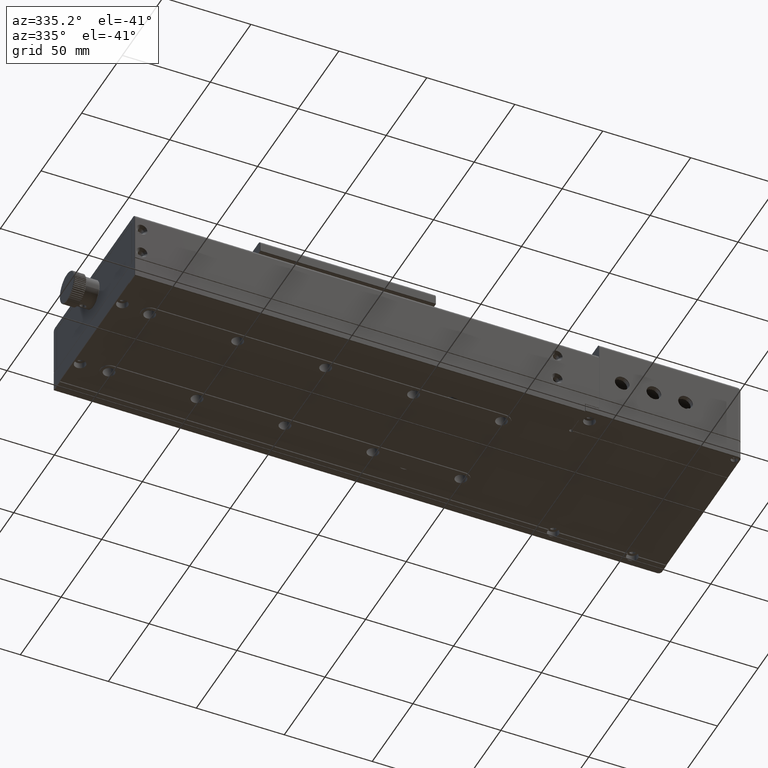
[diagram: clean part render]
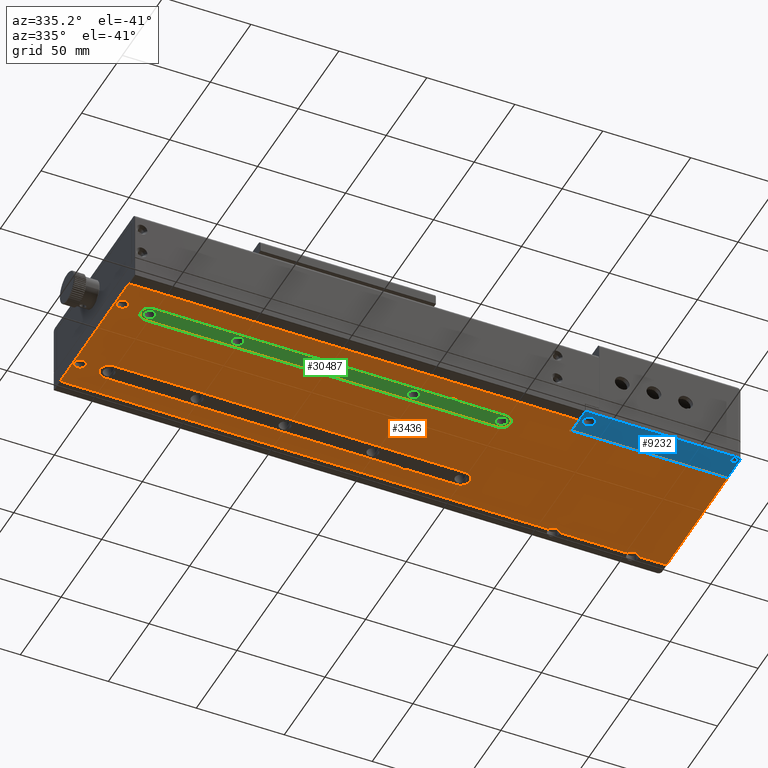
[diagram: same view with three faces highlighted in distinct colors, each labeled with its STEP entity id]
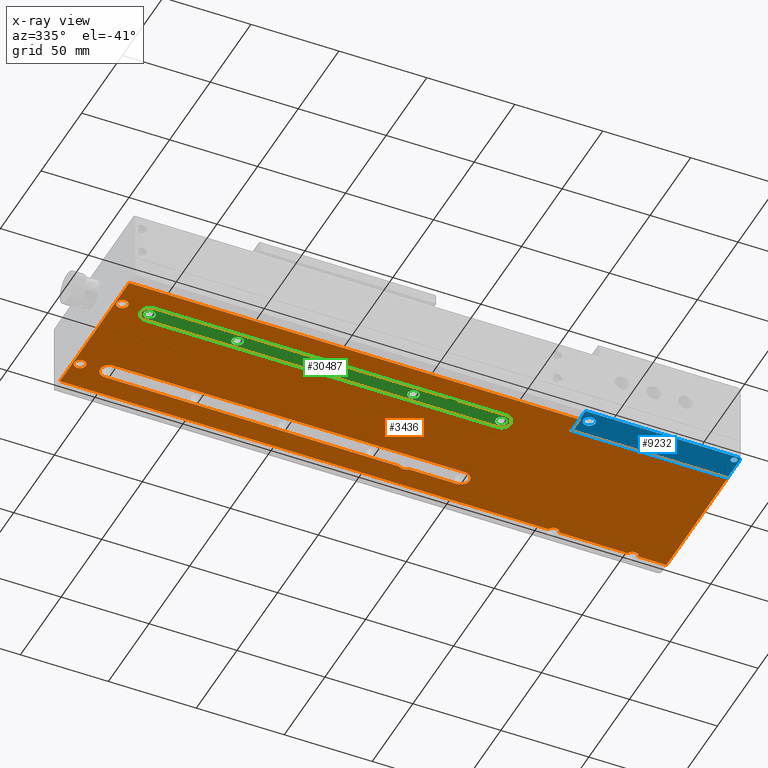
[diagram: x-ray of the same camera — body ghosted, the three highlighted faces saturated]
A machine part, auxiliary view with three faces highlighted in distinct colors.
The next image is the same camera in x-ray (body ghosted, the three faces saturated) — at least one of them is partly hidden behind the body in this view.
Their STEP definitions:

[orange] entity #3436 — the highlighted planar face has unit normal (0, 0, -1).
#35 = FACE_BOUND ( 'NONE', #50889, .T. ) ;
#668 = CARTESIAN_POINT ( 'NONE',  ( 87.03920879970988267, -23.80575141257549632, -4.500000000000000000 ) ) ;
#1462 = EDGE_LOOP ( 'NONE', ( #67904, #23813, #48813, #31419, #66804, #66825, #72398 ) ) ;
#1613 = DIRECTION ( 'NONE',  ( 0.000000000000000000, 0.000000000000000000, 1.000000000000000000 ) ) ;
#2464 = DIRECTION ( 'NONE',  ( 0.000000000000000000, 0.000000000000000000, -1.000000000000000000 ) ) ;
#2886 = DIRECTION ( 'NONE',  ( 0.000000000000000000, 0.000000000000000000, -1.000000000000000000 ) ) ;
#2902 = DIRECTION ( 'NONE',  ( 0.000000000000000000, 0.000000000000000000, 1.000000000000000000 ) ) ;
#3334 = CARTESIAN_POINT ( 'NONE',  ( 51.03920879970989688, 39.99424858742450084, -4.500000000000000000 ) ) ;
#3436 = ADVANCED_FACE ( 'NONE', ( #44260, #38360, #35, #66034, #11440 ), #44645, .T. ) ;
#3461 = EDGE_CURVE ( 'NONE', #41956, #53781, #20891, .T. ) ;
#3626 = DIRECTION ( 'NONE',  ( 0.000000000000000000, 0.000000000000000000, -1.000000000000000000 ) ) ;
#3684 = CARTESIAN_POINT ( 'NONE',  ( -164.9607912002900036, -16.00575141257549916, -4.500000000000000000 ) ) ;
#3701 = VERTEX_POINT ( 'NONE', #36834 ) ;
#3896 = CARTESIAN_POINT ( 'NONE',  ( 157.0392087997099679, 53.49424858742450084, -4.500000000000000000 ) ) ;
#3945 = DIRECTION ( 'NONE',  ( -1.000000000000000000, 0.000000000000000000, 0.000000000000000000 ) ) ;
#4023 = VERTEX_POINT ( 'NONE', #34206 ) ;
#4256 = DIRECTION ( 'NONE',  ( 0.000000000000000000, 0.000000000000000000, -1.000000000000000000 ) ) ;
#4345 = DIRECTION ( 'NONE',  ( -1.000000000000000000, 0.000000000000000000, 0.000000000000000000 ) ) ;
#4831 = CARTESIAN_POINT ( 'NONE',  ( 18.03920879970995372, -20.00575141257549916, -4.500000000000000000 ) ) ;
#4924 = CIRCLE ( 'NONE', #46166, 3.250000000000002665 ) ;
#4974 = ORIENTED_EDGE ( 'NONE', *, *, #16820, .T. ) ;
#5299 = DIRECTION ( 'NONE',  ( 1.000000000000000000, -1.214306433183763733E-16, 0.000000000000000000 ) ) ;
#5459 = VERTEX_POINT ( 'NONE', #19792 ) ;
#5539 = DIRECTION ( 'NONE',  ( -1.000000000000000000, 0.000000000000000000, 0.000000000000000000 ) ) ;
#6135 = AXIS2_PLACEMENT_3D ( 'NONE', #47363, #64320, #8998 ) ;
#6262 = DIRECTION ( 'NONE',  ( -1.000000000000000000, 0.000000000000000000, 0.000000000000000000 ) ) ;
#6398 = CARTESIAN_POINT ( 'NONE',  ( 87.03920879970988267, 59.99424858742450084, -4.500000000000000000 ) ) ;
#6813 = EDGE_CURVE ( 'NONE', #69583, #3701, #45217, .T. ) ;
#7434 = DIRECTION ( 'NONE',  ( -1.000000000000000000, 0.000000000000000000, 0.000000000000000000 ) ) ;
#7517 = ORIENTED_EDGE ( 'NONE', *, *, #13441, .F. ) ;
#7619 = CARTESIAN_POINT ( 'NONE',  ( 51.03920879970989688, 34.99424858742449373, -4.500000000000000000 ) ) ;
#8079 = LINE ( 'NONE', #18436, #72133 ) ;
#8351 = AXIS2_PLACEMENT_3D ( 'NONE', #59644, #9155, #54114 ) ;
#8359 = CARTESIAN_POINT ( 'NONE',  ( 87.03920879970988267, -32.50575141257549916, -4.500000000000000000 ) ) ;
#8755 = CARTESIAN_POINT ( 'NONE',  ( 260.5351628252079763, 52.49424858742450084, -4.500000000000000000 ) ) ;
#8766 = DIRECTION ( 'NONE',  ( -1.000000000000000000, 0.000000000000000000, 0.000000000000000000 ) ) ;
#8810 = VERTEX_POINT ( 'NONE', #48857 ) ;
#8836 = ORIENTED_EDGE ( 'NONE', *, *, #57330, .F. ) ;
#8998 = DIRECTION ( 'NONE',  ( -1.000000000000000000, 6.938893903907227392E-16, 0.000000000000000000 ) ) ;
#9114 = VERTEX_POINT ( 'NONE', #47690 ) ;
#9155 = DIRECTION ( 'NONE',  ( 0.000000000000000000, 0.000000000000000000, -1.000000000000000000 ) ) ;
#9270 = VERTEX_POINT ( 'NONE', #21485 ) ;
#9473 = DIRECTION ( 'NONE',  ( 1.000000000000000000, 0.000000000000000000, 0.000000000000000000 ) ) ;
#9768 = EDGE_CURVE ( 'NONE', #18915, #5459, #4924, .T. ) ;
#9776 = EDGE_CURVE ( 'NONE', #53781, #50901, #56026, .T. ) ;
#9971 = EDGE_CURVE ( 'NONE', #64315, #69583, #8079, .T. ) ;
#10703 = DIRECTION ( 'NONE',  ( 0.000000000000000000, -1.000000000000000000, 0.000000000000000000 ) ) ;
#11080 = CARTESIAN_POINT ( 'NONE',  ( -168.9607912002899752, 59.99424858742450084, -4.500000000000000000 ) ) ;
#11440 = FACE_OUTER_BOUND ( 'NONE', #56497, .T. ) ;
#11518 = DIRECTION ( 'NONE',  ( 1.000000000000000000, 0.000000000000000000, 0.000000000000000000 ) ) ;
#11633 = VERTEX_POINT ( 'NONE', #65643 ) ;
#12034 = CIRCLE ( 'NONE', #13208, 3.250000000000002665 ) ;
#12654 = VECTOR ( 'NONE', #53909, 1000.000000000000000 ) ;
#12670 = DIRECTION ( 'NONE',  ( -1.000000000000000000, 1.214306433183763733E-16, 0.000000000000000000 ) ) ;
#12796 = CIRCLE ( 'NONE', #70460, 3.250000000000002665 ) ;
#13031 = LINE ( 'NONE', #28882, #33735 ) ;
#13208 = AXIS2_PLACEMENT_3D ( 'NONE', #57168, #61347, #66536 ) ;
#13379 = ORIENTED_EDGE ( 'NONE', *, *, #52855, .F. ) ;
#13441 = EDGE_CURVE ( 'NONE', #32456, #39956, #53584, .T. ) ;
#13861 = CARTESIAN_POINT ( 'NONE',  ( 160.1315380189229813, 52.49424858742450084, -4.500000000000000000 ) ) ;
#14099 = CARTESIAN_POINT ( 'NONE',  ( 176.0392087997099964, 59.99424858742450084, -4.500000000000000000 ) ) ;
#15058 = CARTESIAN_POINT ( 'NONE',  ( 87.03920879970988267, -22.80575141257549987, -4.500000000000000000 ) ) ;
#15404 = CARTESIAN_POINT ( 'NONE',  ( -148.9607912002899752, -10.00575141257546008, -4.500000000000000000 ) ) ;
#16253 = DIRECTION ( 'NONE',  ( 0.000000000000000000, 0.000000000000000000, -1.000000000000000000 ) ) ;
#16276 = AXIS2_PLACEMENT_3D ( 'NONE', #3684, #37244, #61168 ) ;
#16820 = EDGE_CURVE ( 'NONE', #44767, #50901, #37915, .T. ) ;
#17054 = CARTESIAN_POINT ( 'NONE',  ( -164.9607912002900036, -16.00575141257549916, -4.500000000000000000 ) ) ;
#17484 = LINE ( 'NONE', #6398, #12654 ) ;
#17623 = CARTESIAN_POINT ( 'NONE',  ( 153.9468795804964998, 52.49424858742450084, -4.500000000000000000 ) ) ;
#18082 = VECTOR ( 'NONE', #36801, 1000.000000000000000 ) ;
#18213 = CARTESIAN_POINT ( 'NONE',  ( -148.9607912002899752, 39.99424858742450084, -4.500000000000000000 ) ) ;
#18436 = CARTESIAN_POINT ( 'NONE',  ( 260.5351628252079763, -32.50575141257549916, -4.500000000000000000 ) ) ;
#18457 = ORIENTED_EDGE ( 'NONE', *, *, #52935, .F. ) ;
#18502 = CIRCLE ( 'NONE', #40879, 4.999999999999997335 ) ;
#18833 = EDGE_CURVE ( 'NONE', #3701, #42419, #59975, .T. ) ;
#18915 = VERTEX_POINT ( 'NONE', #70694 ) ;
#19792 = CARTESIAN_POINT ( 'NONE',  ( -161.7107912002900036, 35.99424858742454347, -4.500000000000000000 ) ) ;
#20891 = CIRCLE ( 'NONE', #30339, 4.999999999999997335 ) ;
#21485 = CARTESIAN_POINT ( 'NONE',  ( 176.0392087997099964, 52.49424858742450084, -4.500000000000000000 ) ) ;
#21656 = VERTEX_POINT ( 'NONE', #51948 ) ;
#22901 = CARTESIAN_POINT ( 'NONE',  ( 115.1315380189230098, 52.49424858742450084, -4.500000000000000000 ) ) ;
#23323 = VECTOR ( 'NONE', #9473, 1000.000000000000000 ) ;
#23354 = ORIENTED_EDGE ( 'NONE', *, *, #27645, .T. ) ;
#23588 = CARTESIAN_POINT ( 'NONE',  ( -168.7607912002899866, -32.50575141257549916, -4.500000000000000000 ) ) ;
#23813 = ORIENTED_EDGE ( 'NONE', *, *, #72193, .F. ) ;
#24095 = DIRECTION ( 'NONE',  ( -1.000000000000000000, -1.387778780781445478E-15, 0.000000000000000000 ) ) ;
#24164 = EDGE_CURVE ( 'NONE', #49954, #42437, #69077, .T. ) ;
#24311 = CIRCLE ( 'NONE', #72545, 4.999999999999997335 ) ;
#24953 = CARTESIAN_POINT ( 'NONE',  ( 51.03920879970989688, 29.99424858742450084, -4.500000000000000000 ) ) ;
#25032 = ORIENTED_EDGE ( 'NONE', *, *, #72847, .T. ) ;
#25078 = VECTOR ( 'NONE', #70130, 1000.000000000000000 ) ;
#25106 = ORIENTED_EDGE ( 'NONE', *, *, #9768, .T. ) ;
#25160 = EDGE_CURVE ( 'NONE', #27872, #9114, #31988, .T. ) ;
#26489 = AXIS2_PLACEMENT_3D ( 'NONE', #3896, #4256, #70644 ) ;
#26925 = ORIENTED_EDGE ( 'NONE', *, *, #25160, .F. ) ;
#27460 = EDGE_LOOP ( 'NONE', ( #66988, #29143, #4974, #47191, #32853, #13379, #26925 ) ) ;
#27504 = CIRCLE ( 'NONE', #28679, 3.250000000000002665 ) ;
#27512 = DIRECTION ( 'NONE',  ( -1.224646799147351975E-16, 1.000000000000000000, 0.000000000000000000 ) ) ;
#27645 = EDGE_CURVE ( 'NONE', #9270, #39568, #53888, .T. ) ;
#27872 = VERTEX_POINT ( 'NONE', #51981 ) ;
#27883 = VERTEX_POINT ( 'NONE', #22901 ) ;
#28679 = AXIS2_PLACEMENT_3D ( 'NONE', #17054, #56104, #45801 ) ;
#28763 = DIRECTION ( 'NONE',  ( 0.000000000000000000, 0.000000000000000000, 1.000000000000000000 ) ) ;
#28882 = CARTESIAN_POINT ( 'NONE',  ( -148.9607912002899752, 29.99424858742450084, -4.500000000000000000 ) ) ;
#28959 = EDGE_LOOP ( 'NONE', ( #25106, #55327 ) ) ;
#29143 = ORIENTED_EDGE ( 'NONE', *, *, #60115, .F. ) ;
#29894 = EDGE_CURVE ( 'NONE', #58717, #54620, #13031, .T. ) ;
#29941 = CARTESIAN_POINT ( 'NONE',  ( -148.9607912002899752, -15.00575141257550094, -4.500000000000000000 ) ) ;
#30339 = AXIS2_PLACEMENT_3D ( 'NONE', #38734, #60477, #66398 ) ;
#31419 = ORIENTED_EDGE ( 'NONE', *, *, #29894, .F. ) ;
#31619 = CARTESIAN_POINT ( 'NONE',  ( 260.5351628252079763, 52.49424858742450084, -4.500000000000000000 ) ) ;
#31988 = LINE ( 'NONE', #15404, #18082 ) ;
#32049 = EDGE_CURVE ( 'NONE', #32456, #9270, #63734, .T. ) ;
#32456 = VERTEX_POINT ( 'NONE', #13861 ) ;
#32568 = CIRCLE ( 'NONE', #67939, 5.000000000000004441 ) ;
#32853 = ORIENTED_EDGE ( 'NONE', *, *, #3461, .F. ) ;
#32956 = ORIENTED_EDGE ( 'NONE', *, *, #9971, .T. ) ;
#33192 = CARTESIAN_POINT ( 'NONE',  ( -148.9607912002899752, -20.00575141257549916, -4.500000000000000000 ) ) ;
#33735 = VECTOR ( 'NONE', #12670, 1000.000000000000000 ) ;
#34088 = ORIENTED_EDGE ( 'NONE', *, *, #18833, .T. ) ;
#34206 = CARTESIAN_POINT ( 'NONE',  ( 18.03920879970985069, 39.99424858742450084, -4.500000000000000000 ) ) ;
#34496 = VECTOR ( 'NONE', #57635, 1000.000000000000000 ) ;
#35333 = CARTESIAN_POINT ( 'NONE',  ( 56.03920879970990399, -15.00575141257550094, -4.500000000000000000 ) ) ;
#36511 = EDGE_CURVE ( 'NONE', #55060, #58717, #24311, .T. ) ;
#36801 = DIRECTION ( 'NONE',  ( 1.000000000000000000, -2.081668171172169746E-16, 0.000000000000000000 ) ) ;
#36834 = CARTESIAN_POINT ( 'NONE',  ( -168.7607912002899866, 52.49424858742450084, -4.500000000000000000 ) ) ;
#37244 = DIRECTION ( 'NONE',  ( 0.000000000000000000, 0.000000000000000000, 1.000000000000000000 ) ) ;
#37494 = CARTESIAN_POINT ( 'NONE',  ( 51.03920879970989688, -15.00575141257550094, -4.500000000000000000 ) ) ;
#37527 = CARTESIAN_POINT ( 'NONE',  ( -164.9607912002900036, 35.99424858742454347, -4.500000000000000000 ) ) ;
#37915 = CIRCLE ( 'NONE', #6135, 5.000000000000000888 ) ;
#37944 = VECTOR ( 'NONE', #5299, 1000.000000000000000 ) ;
#38360 = FACE_BOUND ( 'NONE', #28959, .T. ) ;
#38553 = EDGE_CURVE ( 'NONE', #50530, #46937, #47147, .T. ) ;
#38734 = CARTESIAN_POINT ( 'NONE',  ( 51.03920879970989688, -15.00575141257550094, -4.500000000000000000 ) ) ;
#38827 = VECTOR ( 'NONE', #27512, 1000.000000000000000 ) ;
#39240 = LINE ( 'NONE', #45136, #37944 ) ;
#39252 = DIRECTION ( 'NONE',  ( 0.000000000000000000, 0.000000000000000000, -1.000000000000000000 ) ) ;
#39568 = VERTEX_POINT ( 'NONE', #50143 ) ;
#39956 = VERTEX_POINT ( 'NONE', #17623 ) ;
#40379 = CIRCLE ( 'NONE', #56797, 5.000000000000004441 ) ;
#40879 = AXIS2_PLACEMENT_3D ( 'NONE', #37494, #39252, #3945 ) ;
#41844 = VECTOR ( 'NONE', #69983, 1000.000000000000000 ) ;
#41848 = ORIENTED_EDGE ( 'NONE', *, *, #49711, .T. ) ;
#41956 = VERTEX_POINT ( 'NONE', #35333 ) ;
#42115 = ORIENTED_EDGE ( 'NONE', *, *, #32049, .T. ) ;
#42419 = VERTEX_POINT ( 'NONE', #60067 ) ;
#42437 = VERTEX_POINT ( 'NONE', #3334 ) ;
#42514 = CIRCLE ( 'NONE', #8351, 1.000000000000000888 ) ;
#44260 = FACE_BOUND ( 'NONE', #1462, .T. ) ;
#44611 = CARTESIAN_POINT ( 'NONE',  ( 51.03920879970989688, -20.00575141257549916, -4.500000000000000000 ) ) ;
#44645 = PLANE ( 'NONE',  #69131 ) ;
#44767 = VERTEX_POINT ( 'NONE', #4831 ) ;
#45081 = VECTOR ( 'NONE', #49373, 1000.000000000000000 ) ;
#45136 = CARTESIAN_POINT ( 'NONE',  ( -148.9607912002899752, 39.99424858742450084, -4.500000000000000000 ) ) ;
#45217 = LINE ( 'NONE', #72122, #38827 ) ;
#45801 = DIRECTION ( 'NONE',  ( -1.000000000000000000, 0.000000000000000000, 0.000000000000000000 ) ) ;
#46166 = AXIS2_PLACEMENT_3D ( 'NONE', #61942, #28763, #6262 ) ;
#46794 = LINE ( 'NONE', #59263, #66245 ) ;
#46937 = VERTEX_POINT ( 'NONE', #64377 ) ;
#47147 = CIRCLE ( 'NONE', #65973, 1.000000000000000888 ) ;
#47191 = ORIENTED_EDGE ( 'NONE', *, *, #9776, .F. ) ;
#47363 = CARTESIAN_POINT ( 'NONE',  ( 21.03920879970990043, -16.00575141257549916, -4.500000000000000000 ) ) ;
#47659 = EDGE_CURVE ( 'NONE', #53508, #27872, #32568, .T. ) ;
#47690 = CARTESIAN_POINT ( 'NONE',  ( 51.03920879970989688, -10.00575141257547962, -4.500000000000000000 ) ) ;
#48666 = DIRECTION ( 'NONE',  ( 0.000000000000000000, 0.000000000000000000, -1.000000000000000000 ) ) ;
#48813 = ORIENTED_EDGE ( 'NONE', *, *, #60083, .F. ) ;
#48857 = CARTESIAN_POINT ( 'NONE',  ( -148.9607912002899752, 39.99424858742450084, -4.500000000000000000 ) ) ;
#49129 = VECTOR ( 'NONE', #11518, 1000.000000000000000 ) ;
#49263 = EDGE_CURVE ( 'NONE', #5459, #18915, #12796, .T. ) ;
#49373 = DIRECTION ( 'NONE',  ( -1.000000000000000000, 0.000000000000000000, 0.000000000000000000 ) ) ;
#49696 = CARTESIAN_POINT ( 'NONE',  ( 88.03920879970988267, -22.80575141257549987, -4.500000000000000000 ) ) ;
#49711 = EDGE_CURVE ( 'NONE', #27883, #39956, #57200, .T. ) ;
#49954 = VERTEX_POINT ( 'NONE', #54574 ) ;
#50143 = CARTESIAN_POINT ( 'NONE',  ( 176.0392087997099964, -22.80575141257549987, -4.500000000000000000 ) ) ;
#50530 = VERTEX_POINT ( 'NONE', #668 ) ;
#50889 = EDGE_LOOP ( 'NONE', ( #65684, #61529 ) ) ;
#50901 = VERTEX_POINT ( 'NONE', #61384 ) ;
#51316 = CARTESIAN_POINT ( 'NONE',  ( 260.5351628252079763, 52.49424858742450084, -4.500000000000000000 ) ) ;
#51417 = CIRCLE ( 'NONE', #62001, 4.999999999999997335 ) ;
#51707 = ORIENTED_EDGE ( 'NONE', *, *, #59601, .F. ) ;
#51948 = CARTESIAN_POINT ( 'NONE',  ( -161.7107912002900036, -16.00575141257549916, -4.500000000000000000 ) ) ;
#51981 = CARTESIAN_POINT ( 'NONE',  ( -148.9607912002899752, -10.00575141257546008, -4.500000000000000000 ) ) ;
#52080 = VECTOR ( 'NONE', #5539, 1000.000000000000000 ) ;
#52855 = EDGE_CURVE ( 'NONE', #9114, #41956, #18502, .T. ) ;
#52935 = EDGE_CURVE ( 'NONE', #64315, #50530, #17484, .T. ) ;
#53508 = VERTEX_POINT ( 'NONE', #71160 ) ;
#53529 = EDGE_CURVE ( 'NONE', #21656, #11633, #55075, .T. ) ;
#53584 = CIRCLE ( 'NONE', #26489, 3.250000000000002665 ) ;
#53668 = DIRECTION ( 'NONE',  ( -1.000000000000000000, 0.000000000000000000, 0.000000000000000000 ) ) ;
#53781 = VERTEX_POINT ( 'NONE', #44611 ) ;
#53888 = LINE ( 'NONE', #14099, #25078 ) ;
#53909 = DIRECTION ( 'NONE',  ( 0.000000000000000000, 1.000000000000000000, 0.000000000000000000 ) ) ;
#54114 = DIRECTION ( 'NONE',  ( -1.000000000000000000, 0.000000000000000000, 0.000000000000000000 ) ) ;
#54142 = ORIENTED_EDGE ( 'NONE', *, *, #38553, .F. ) ;
#54574 = CARTESIAN_POINT ( 'NONE',  ( 24.03920879970994662, 39.99424858742450084, -4.500000000000000000 ) ) ;
#54620 = VERTEX_POINT ( 'NONE', #71172 ) ;
#54820 = CARTESIAN_POINT ( 'NONE',  ( 56.03920879970990399, 34.99424858742449373, -4.500000000000000000 ) ) ;
#55060 = VERTEX_POINT ( 'NONE', #54820 ) ;
#55075 = CIRCLE ( 'NONE', #16276, 3.250000000000002665 ) ;
#55327 = ORIENTED_EDGE ( 'NONE', *, *, #49263, .T. ) ;
#56026 = LINE ( 'NONE', #33192, #52080 ) ;
#56104 = DIRECTION ( 'NONE',  ( 0.000000000000000000, 0.000000000000000000, 1.000000000000000000 ) ) ;
#56497 = EDGE_LOOP ( 'NONE', ( #7517, #42115, #23354, #25032, #8836, #54142, #18457, #32956, #64673, #34088, #51707, #41848 ) ) ;
#56797 = AXIS2_PLACEMENT_3D ( 'NONE', #58895, #2886, #69623 ) ;
#57168 = CARTESIAN_POINT ( 'NONE',  ( 112.0392087997100106, 53.49424858742450084, -4.500000000000000000 ) ) ;
#57200 = LINE ( 'NONE', #51316, #49129 ) ;
#57249 = AXIS2_PLACEMENT_3D ( 'NONE', #64960, #1613, #24095 ) ;
#57330 = EDGE_CURVE ( 'NONE', #46937, #63939, #42514, .T. ) ;
#57635 = DIRECTION ( 'NONE',  ( 1.000000000000000000, -1.214306433183763733E-16, 0.000000000000000000 ) ) ;
#58717 = VERTEX_POINT ( 'NONE', #24953 ) ;
#58895 = CARTESIAN_POINT ( 'NONE',  ( -148.9607912002899752, 34.99424858742449373, -4.500000000000000000 ) ) ;
#59263 = CARTESIAN_POINT ( 'NONE',  ( -148.9607912002899752, -20.00575141257549916, -4.500000000000000000 ) ) ;
#59601 = EDGE_CURVE ( 'NONE', #27883, #42419, #12034, .T. ) ;
#59644 = CARTESIAN_POINT ( 'NONE',  ( 87.03920879970988267, -22.80575141257549987, -4.500000000000000000 ) ) ;
#59975 = LINE ( 'NONE', #8755, #23323 ) ;
#60006 = DIRECTION ( 'NONE',  ( -1.000000000000000000, 0.000000000000000000, 0.000000000000000000 ) ) ;
#60067 = CARTESIAN_POINT ( 'NONE',  ( 108.9468795804965850, 52.49424858742450084, -4.500000000000000000 ) ) ;
#60083 = EDGE_CURVE ( 'NONE', #54620, #8810, #40379, .T. ) ;
#60115 = EDGE_CURVE ( 'NONE', #44767, #53508, #46794, .T. ) ;
#60430 = CARTESIAN_POINT ( 'NONE',  ( -168.9607912002899752, -22.80575141257549987, -4.500000000000000000 ) ) ;
#60477 = DIRECTION ( 'NONE',  ( 0.000000000000000000, 0.000000000000000000, -1.000000000000000000 ) ) ;
#60996 = EDGE_CURVE ( 'NONE', #11633, #21656, #27504, .T. ) ;
#61168 = DIRECTION ( 'NONE',  ( -1.000000000000000000, 0.000000000000000000, 0.000000000000000000 ) ) ;
#61347 = DIRECTION ( 'NONE',  ( 0.000000000000000000, 0.000000000000000000, -1.000000000000000000 ) ) ;
#61384 = CARTESIAN_POINT ( 'NONE',  ( 24.03920879970989688, -20.00575141257549916, -4.500000000000000000 ) ) ;
#61529 = ORIENTED_EDGE ( 'NONE', *, *, #53529, .T. ) ;
#61942 = CARTESIAN_POINT ( 'NONE',  ( -164.9607912002900036, 35.99424858742454347, -4.500000000000000000 ) ) ;
#62001 = AXIS2_PLACEMENT_3D ( 'NONE', #70434, #48666, #64546 ) ;
#63043 = DIRECTION ( 'NONE',  ( -1.000000000000000000, 0.000000000000000000, 0.000000000000000000 ) ) ;
#63734 = LINE ( 'NONE', #31619, #41844 ) ;
#63939 = VERTEX_POINT ( 'NONE', #49696 ) ;
#64315 = VERTEX_POINT ( 'NONE', #8359 ) ;
#64320 = DIRECTION ( 'NONE',  ( 0.000000000000000000, 0.000000000000000000, 1.000000000000000000 ) ) ;
#64377 = CARTESIAN_POINT ( 'NONE',  ( 86.03920879970988267, -22.80575141257549987, -4.500000000000000000 ) ) ;
#64546 = DIRECTION ( 'NONE',  ( -1.000000000000000000, 0.000000000000000000, 0.000000000000000000 ) ) ;
#64673 = ORIENTED_EDGE ( 'NONE', *, *, #6813, .T. ) ;
#64960 = CARTESIAN_POINT ( 'NONE',  ( 21.03920879970990043, 35.99424858742454347, -4.500000000000000000 ) ) ;
#65261 = LINE ( 'NONE', #60430, #45081 ) ;
#65643 = CARTESIAN_POINT ( 'NONE',  ( -168.2107912002899752, -16.00575141257549916, -4.500000000000000000 ) ) ;
#65684 = ORIENTED_EDGE ( 'NONE', *, *, #60996, .T. ) ;
#65973 = AXIS2_PLACEMENT_3D ( 'NONE', #15058, #3626, #4345 ) ;
#66034 = FACE_BOUND ( 'NONE', #27460, .T. ) ;
#66140 = EDGE_CURVE ( 'NONE', #49954, #4023, #67846, .T. ) ;
#66245 = VECTOR ( 'NONE', #8766, 1000.000000000000000 ) ;
#66398 = DIRECTION ( 'NONE',  ( -1.000000000000000000, 0.000000000000000000, 0.000000000000000000 ) ) ;
#66536 = DIRECTION ( 'NONE',  ( -1.000000000000000000, 0.000000000000000000, 0.000000000000000000 ) ) ;
#66804 = ORIENTED_EDGE ( 'NONE', *, *, #36511, .F. ) ;
#66825 = ORIENTED_EDGE ( 'NONE', *, *, #67996, .F. ) ;
#66988 = ORIENTED_EDGE ( 'NONE', *, *, #47659, .F. ) ;
#67846 = CIRCLE ( 'NONE', #57249, 5.000000000000000888 ) ;
#67904 = ORIENTED_EDGE ( 'NONE', *, *, #66140, .T. ) ;
#67939 = AXIS2_PLACEMENT_3D ( 'NONE', #29941, #69735, #7434 ) ;
#67996 = EDGE_CURVE ( 'NONE', #42437, #55060, #51417, .T. ) ;
#69077 = LINE ( 'NONE', #18213, #34496 ) ;
#69131 = AXIS2_PLACEMENT_3D ( 'NONE', #11080, #16253, #10703 ) ;
#69583 = VERTEX_POINT ( 'NONE', #23588 ) ;
#69623 = DIRECTION ( 'NONE',  ( -1.000000000000000000, 0.000000000000000000, 0.000000000000000000 ) ) ;
#69735 = DIRECTION ( 'NONE',  ( 0.000000000000000000, 0.000000000000000000, -1.000000000000000000 ) ) ;
#69983 = DIRECTION ( 'NONE',  ( 1.000000000000000000, 0.000000000000000000, 0.000000000000000000 ) ) ;
#70130 = DIRECTION ( 'NONE',  ( 0.000000000000000000, -1.000000000000000000, 0.000000000000000000 ) ) ;
#70434 = CARTESIAN_POINT ( 'NONE',  ( 51.03920879970989688, 34.99424858742449373, -4.500000000000000000 ) ) ;
#70460 = AXIS2_PLACEMENT_3D ( 'NONE', #37527, #2902, #60006 ) ;
#70644 = DIRECTION ( 'NONE',  ( -1.000000000000000000, 0.000000000000000000, 0.000000000000000000 ) ) ;
#70694 = CARTESIAN_POINT ( 'NONE',  ( -168.2107912002899752, 35.99424858742454347, -4.500000000000000000 ) ) ;
#71160 = CARTESIAN_POINT ( 'NONE',  ( -148.9607912002899752, -20.00575141257549916, -4.500000000000000000 ) ) ;
#71172 = CARTESIAN_POINT ( 'NONE',  ( -148.9607912002899752, 29.99424858742450084, -4.500000000000000000 ) ) ;
#72122 = CARTESIAN_POINT ( 'NONE',  ( -168.7607912002899866, 52.49424858742450084, -4.500000000000000000 ) ) ;
#72133 = VECTOR ( 'NONE', #63043, 1000.000000000000000 ) ;
#72193 = EDGE_CURVE ( 'NONE', #8810, #4023, #39240, .T. ) ;
#72398 = ORIENTED_EDGE ( 'NONE', *, *, #24164, .F. ) ;
#72545 = AXIS2_PLACEMENT_3D ( 'NONE', #7619, #2464, #53668 ) ;
#72847 = EDGE_CURVE ( 'NONE', #39568, #63939, #65261, .T. ) ;

[blue] entity #9232 — the highlighted planar face has unit normal (0, 0, 1).
#2654 = CARTESIAN_POINT ( 'NONE',  ( 95.03920879970989688, -23.00575141257549916, -4.500000000000000000 ) ) ;
#3189 = VECTOR ( 'NONE', #70829, 1000.000000000000000 ) ;
#3379 = EDGE_CURVE ( 'NONE', #38583, #67482, #4083, .T. ) ;
#3448 = FACE_OUTER_BOUND ( 'NONE', #39964, .T. ) ;
#4083 = LINE ( 'NONE', #2654, #3189 ) ;
#4386 = AXIS2_PLACEMENT_3D ( 'NONE', #54656, #66109, #33289 ) ;
#7131 = EDGE_LOOP ( 'NONE', ( #55685, #31950 ) ) ;
#7496 = CARTESIAN_POINT ( 'NONE',  ( 175.8392087997099793, -23.00575141257549916, -4.500000000000000000 ) ) ;
#8509 = CARTESIAN_POINT ( 'NONE',  ( 171.0892087997099793, -37.00575141257550627, -4.500000000000000000 ) ) ;
#9232 = ADVANCED_FACE ( 'NONE', ( #20747, #14871, #3448 ), #66101, .F. ) ;
#10346 = CIRCLE ( 'NONE', #71567, 1.799999999999996048 ) ;
#10608 = DIRECTION ( 'NONE',  ( 0.000000000000000000, -1.000000000000000000, 0.000000000000000000 ) ) ;
#10692 = CARTESIAN_POINT ( 'NONE',  ( 92.53920879970989688, -33.20575141257550200, -4.500000000000000000 ) ) ;
#10987 = EDGE_CURVE ( 'NONE', #35875, #20350, #11220, .T. ) ;
#11220 = LINE ( 'NONE', #11590, #68239 ) ;
#11590 = CARTESIAN_POINT ( 'NONE',  ( 95.03920879970989688, -39.80575141257550342, -4.500000000000000000 ) ) ;
#11949 = DIRECTION ( 'NONE',  ( -1.000000000000000000, 0.000000000000000000, 0.000000000000000000 ) ) ;
#12390 = ORIENTED_EDGE ( 'NONE', *, *, #64995, .T. ) ;
#13857 = DIRECTION ( 'NONE',  ( 0.000000000000000000, 0.000000000000000000, 1.000000000000000000 ) ) ;
#14871 = FACE_BOUND ( 'NONE', #7131, .T. ) ;
#15523 = AXIS2_PLACEMENT_3D ( 'NONE', #31821, #60547, #53937 ) ;
#15695 = AXIS2_PLACEMENT_3D ( 'NONE', #30090, #13857, #35975 ) ;
#16527 = CARTESIAN_POINT ( 'NONE',  ( 175.8392087997099793, -22.80575141257549987, -4.500000000000000000 ) ) ;
#16604 = CARTESIAN_POINT ( 'NONE',  ( 174.0392087997099964, -39.80575141257550342, -4.500000000000000000 ) ) ;
#17504 = DIRECTION ( 'NONE',  ( 1.000000000000000000, 0.000000000000000000, 0.000000000000000000 ) ) ;
#20350 = VERTEX_POINT ( 'NONE', #50387 ) ;
#20747 = FACE_BOUND ( 'NONE', #39739, .T. ) ;
#20854 = CIRCLE ( 'NONE', #4386, 3.449999999999994849 ) ;
#21057 = VERTEX_POINT ( 'NONE', #71624 ) ;
#21684 = LINE ( 'NONE', #16527, #42703 ) ;
#21787 = CIRCLE ( 'NONE', #57089, 1.950000000000007283 ) ;
#25988 = CIRCLE ( 'NONE', #67205, 3.449999999999994849 ) ;
#26455 = DIRECTION ( 'NONE',  ( -1.224646799147353947E-16, 1.000000000000000000, 0.000000000000000000 ) ) ;
#27742 = ORIENTED_EDGE ( 'NONE', *, *, #3379, .T. ) ;
#27961 = CARTESIAN_POINT ( 'NONE',  ( 175.8392087997099793, -38.00575141257550627, -4.500000000000000000 ) ) ;
#29233 = VERTEX_POINT ( 'NONE', #35066 ) ;
#30090 = CARTESIAN_POINT ( 'NONE',  ( 173.0392087997099964, -37.00575141257550627, -4.500000000000000000 ) ) ;
#30243 = CARTESIAN_POINT ( 'NONE',  ( 173.0392087997099964, -37.00575141257550627, -4.500000000000000000 ) ) ;
#31003 = CIRCLE ( 'NONE', #15695, 1.950000000000007283 ) ;
#31821 = CARTESIAN_POINT ( 'NONE',  ( 95.03920879970989688, -22.80575141257549987, -4.500000000000000000 ) ) ;
#31950 = ORIENTED_EDGE ( 'NONE', *, *, #37064, .T. ) ;
#32435 = VERTEX_POINT ( 'NONE', #64366 ) ;
#33189 = DIRECTION ( 'NONE',  ( 0.000000000000000000, 0.000000000000000000, 1.000000000000000000 ) ) ;
#33289 = DIRECTION ( 'NONE',  ( 1.000000000000000000, 0.000000000000000000, 0.000000000000000000 ) ) ;
#35066 = CARTESIAN_POINT ( 'NONE',  ( 95.98920879970988551, -33.20575141257550200, -4.500000000000000000 ) ) ;
#35875 = VERTEX_POINT ( 'NONE', #16604 ) ;
#35975 = DIRECTION ( 'NONE',  ( 1.000000000000000000, 0.000000000000000000, 0.000000000000000000 ) ) ;
#36822 = CARTESIAN_POINT ( 'NONE',  ( 87.23920879970989972, -23.00575141257549916, -4.500000000000000000 ) ) ;
#37064 = EDGE_CURVE ( 'NONE', #29233, #32435, #20854, .T. ) ;
#38583 = VERTEX_POINT ( 'NONE', #36822 ) ;
#39739 = EDGE_LOOP ( 'NONE', ( #49801, #12390 ) ) ;
#39964 = EDGE_LOOP ( 'NONE', ( #60446, #27742, #72542, #52089, #40534 ) ) ;
#40534 = ORIENTED_EDGE ( 'NONE', *, *, #10987, .T. ) ;
#41160 = VERTEX_POINT ( 'NONE', #27961 ) ;
#42703 = VECTOR ( 'NONE', #10608, 1000.000000000000000 ) ;
#43078 = EDGE_CURVE ( 'NONE', #69264, #21057, #31003, .T. ) ;
#43415 = CARTESIAN_POINT ( 'NONE',  ( 87.23920879970989972, -22.80575141257549987, -4.500000000000000000 ) ) ;
#46442 = EDGE_CURVE ( 'NONE', #20350, #38583, #65904, .T. ) ;
#49801 = ORIENTED_EDGE ( 'NONE', *, *, #43078, .T. ) ;
#50387 = CARTESIAN_POINT ( 'NONE',  ( 87.23920879970989972, -39.80575141257550342, -4.500000000000000000 ) ) ;
#52089 = ORIENTED_EDGE ( 'NONE', *, *, #69092, .T. ) ;
#53937 = DIRECTION ( 'NONE',  ( 1.000000000000000000, 0.000000000000000000, 0.000000000000000000 ) ) ;
#54656 = CARTESIAN_POINT ( 'NONE',  ( 92.53920879970989688, -33.20575141257550200, -4.500000000000000000 ) ) ;
#54751 = VECTOR ( 'NONE', #26455, 1000.000000000000000 ) ;
#55660 = DIRECTION ( 'NONE',  ( 1.000000000000000000, 0.000000000000000000, 0.000000000000000000 ) ) ;
#55685 = ORIENTED_EDGE ( 'NONE', *, *, #56915, .T. ) ;
#56915 = EDGE_CURVE ( 'NONE', #32435, #29233, #25988, .T. ) ;
#57089 = AXIS2_PLACEMENT_3D ( 'NONE', #30243, #62698, #68596 ) ;
#60446 = ORIENTED_EDGE ( 'NONE', *, *, #46442, .T. ) ;
#60547 = DIRECTION ( 'NONE',  ( 0.000000000000000000, 0.000000000000000000, 1.000000000000000000 ) ) ;
#62698 = DIRECTION ( 'NONE',  ( 0.000000000000000000, 0.000000000000000000, 1.000000000000000000 ) ) ;
#62842 = DIRECTION ( 'NONE',  ( 0.000000000000000000, 0.000000000000000000, -1.000000000000000000 ) ) ;
#63220 = EDGE_CURVE ( 'NONE', #67482, #41160, #21684, .T. ) ;
#64366 = CARTESIAN_POINT ( 'NONE',  ( 89.08920879970989404, -33.20575141257550200, -4.500000000000000000 ) ) ;
#64995 = EDGE_CURVE ( 'NONE', #21057, #69264, #21787, .T. ) ;
#65904 = LINE ( 'NONE', #43415, #54751 ) ;
#66101 = PLANE ( 'NONE',  #15523 ) ;
#66109 = DIRECTION ( 'NONE',  ( 0.000000000000000000, 0.000000000000000000, 1.000000000000000000 ) ) ;
#67205 = AXIS2_PLACEMENT_3D ( 'NONE', #10692, #33189, #55660 ) ;
#67482 = VERTEX_POINT ( 'NONE', #7496 ) ;
#68007 = CARTESIAN_POINT ( 'NONE',  ( 174.0392087997099964, -38.00575141257550627, -4.500000000000000000 ) ) ;
#68239 = VECTOR ( 'NONE', #11949, 1000.000000000000000 ) ;
#68596 = DIRECTION ( 'NONE',  ( 1.000000000000000000, 0.000000000000000000, 0.000000000000000000 ) ) ;
#69092 = EDGE_CURVE ( 'NONE', #41160, #35875, #10346, .T. ) ;
#69264 = VERTEX_POINT ( 'NONE', #8509 ) ;
#70829 = DIRECTION ( 'NONE',  ( 1.000000000000000000, 0.000000000000000000, 0.000000000000000000 ) ) ;
#71567 = AXIS2_PLACEMENT_3D ( 'NONE', #68007, #62842, #17504 ) ;
#71624 = CARTESIAN_POINT ( 'NONE',  ( 174.9892087997100134, -37.00575141257550627, -4.500000000000000000 ) ) ;
#72542 = ORIENTED_EDGE ( 'NONE', *, *, #63220, .T. ) ;

[green] entity #30487 — the highlighted planar face has unit normal (0, 0, -1).
#1307 = VERTEX_POINT ( 'NONE', #35595 ) ;
#2077 = AXIS2_PLACEMENT_3D ( 'NONE', #68456, #51843, #23486 ) ;
#2574 = DIRECTION ( 'NONE',  ( -1.000000000000000000, 0.000000000000000000, 0.000000000000000000 ) ) ;
#3185 = DIRECTION ( 'NONE',  ( 0.000000000000000000, 0.000000000000000000, -1.000000000000000000 ) ) ;
#3456 = DIRECTION ( 'NONE',  ( 0.000000000000000000, 0.000000000000000000, -1.000000000000000000 ) ) ;
#4302 = CARTESIAN_POINT ( 'NONE',  ( -45.66079120029010596, -15.00575141257550094, -5.000000000000000000 ) ) ;
#4533 = CARTESIAN_POINT ( 'NONE',  ( -2.260791200290079850, -15.00575141257550094, -5.000000000000000000 ) ) ;
#6557 = CARTESIAN_POINT ( 'NONE',  ( -148.9607912002899752, -15.00575141257550094, -5.000000000000000000 ) ) ;
#6942 = AXIS2_PLACEMENT_3D ( 'NONE', #21267, #43403, #43045 ) ;
#7347 = EDGE_CURVE ( 'NONE', #55014, #48137, #55179, .T. ) ;
#8132 = ORIENTED_EDGE ( 'NONE', *, *, #35899, .T. ) ;
#8549 = ORIENTED_EDGE ( 'NONE', *, *, #19179, .T. ) ;
#8612 = DIRECTION ( 'NONE',  ( -1.000000000000000000, 0.000000000000000000, 0.000000000000000000 ) ) ;
#8669 = VERTEX_POINT ( 'NONE', #59542 ) ;
#9860 = CARTESIAN_POINT ( 'NONE',  ( -102.2607912002900150, -15.00575141257550094, -5.000000000000000000 ) ) ;
#9937 = DIRECTION ( 'NONE',  ( -1.000000000000000000, 0.000000000000000000, 0.000000000000000000 ) ) ;
#10320 = DIRECTION ( 'NONE',  ( -1.000000000000000000, 0.000000000000000000, 0.000000000000000000 ) ) ;
#10325 = CARTESIAN_POINT ( 'NONE',  ( -148.9607912002899752, -20.00575141257549916, -5.000000000000000000 ) ) ;
#10508 = CARTESIAN_POINT ( 'NONE',  ( -95.66079120029010596, -15.00575141257550094, -5.000000000000000000 ) ) ;
#11738 = DIRECTION ( 'NONE',  ( 0.000000000000000000, 0.000000000000000000, -1.000000000000000000 ) ) ;
#12096 = AXIS2_PLACEMENT_3D ( 'NONE', #45695, #68176, #16958 ) ;
#12468 = ORIENTED_EDGE ( 'NONE', *, *, #16188, .F. ) ;
#12755 = CIRCLE ( 'NONE', #58617, 3.299999999999999822 ) ;
#12913 = DIRECTION ( 'NONE',  ( 0.000000000000000000, 0.000000000000000000, -1.000000000000000000 ) ) ;
#13718 = AXIS2_PLACEMENT_3D ( 'NONE', #30824, #3185, #48159 ) ;
#13838 = EDGE_CURVE ( 'NONE', #70625, #8669, #25390, .T. ) ;
#14735 = EDGE_LOOP ( 'NONE', ( #30148, #72221 ) ) ;
#15356 = VERTEX_POINT ( 'NONE', #17889 ) ;
#15616 = ORIENTED_EDGE ( 'NONE', *, *, #36990, .T. ) ;
#16188 = EDGE_CURVE ( 'NONE', #70842, #15356, #59058, .T. ) ;
#16408 = EDGE_CURVE ( 'NONE', #45353, #24796, #29627, .T. ) ;
#16732 = CARTESIAN_POINT ( 'NONE',  ( -52.26079120029010028, -15.00575141257550094, -5.000000000000000000 ) ) ;
#16958 = DIRECTION ( 'NONE',  ( -1.000000000000000000, 0.000000000000000000, 0.000000000000000000 ) ) ;
#17016 = LINE ( 'NONE', #56781, #70559 ) ;
#17889 = CARTESIAN_POINT ( 'NONE',  ( 54.33920879970990114, -15.00575141257550094, -5.000000000000000000 ) ) ;
#18374 = DIRECTION ( 'NONE',  ( -1.000000000000000000, 0.000000000000000000, 0.000000000000000000 ) ) ;
#18552 = CARTESIAN_POINT ( 'NONE',  ( -152.2607912002899866, -15.00575141257550094, -5.000000000000000000 ) ) ;
#19179 = EDGE_CURVE ( 'NONE', #38174, #61959, #57451, .T. ) ;
#19358 = ORIENTED_EDGE ( 'NONE', *, *, #59941, .F. ) ;
#21267 = CARTESIAN_POINT ( 'NONE',  ( -98.96079120029010312, -15.00575141257550094, -5.000000000000000000 ) ) ;
#21350 = FACE_BOUND ( 'NONE', #71368, .T. ) ;
#21352 = ORIENTED_EDGE ( 'NONE', *, *, #33107, .F. ) ;
#21775 = DIRECTION ( 'NONE',  ( 0.000000000000000000, 0.000000000000000000, -1.000000000000000000 ) ) ;
#22059 = CIRCLE ( 'NONE', #2077, 3.299999999999997158 ) ;
#22511 = DIRECTION ( 'NONE',  ( -1.000000000000000000, 0.000000000000000000, 0.000000000000000000 ) ) ;
#23486 = DIRECTION ( 'NONE',  ( -1.000000000000000000, 0.000000000000000000, 0.000000000000000000 ) ) ;
#24252 = AXIS2_PLACEMENT_3D ( 'NONE', #28021, #26926, #10320 ) ;
#24373 = AXIS2_PLACEMENT_3D ( 'NONE', #43124, #49367, #49009 ) ;
#24796 = VERTEX_POINT ( 'NONE', #42799 ) ;
#25390 = CIRCLE ( 'NONE', #54776, 3.299999999999999822 ) ;
#25771 = CIRCLE ( 'NONE', #30459, 3.299999999999997158 ) ;
#26926 = DIRECTION ( 'NONE',  ( 0.000000000000000000, 0.000000000000000000, -1.000000000000000000 ) ) ;
#27293 = AXIS2_PLACEMENT_3D ( 'NONE', #52698, #12913, #2574 ) ;
#27487 = ORIENTED_EDGE ( 'NONE', *, *, #13838, .F. ) ;
#27603 = VERTEX_POINT ( 'NONE', #18552 ) ;
#28021 = CARTESIAN_POINT ( 'NONE',  ( 51.03920879970989688, -15.00575141257550094, -5.000000000000000000 ) ) ;
#29627 = CIRCLE ( 'NONE', #27293, 4.999999999999997335 ) ;
#30085 = CARTESIAN_POINT ( 'NONE',  ( -148.9607912002899752, -15.00575141257550094, -5.000000000000000000 ) ) ;
#30148 = ORIENTED_EDGE ( 'NONE', *, *, #36121, .F. ) ;
#30459 = AXIS2_PLACEMENT_3D ( 'NONE', #71079, #64817, #48231 ) ;
#30487 = ADVANCED_FACE ( 'NONE', ( #21350, #48650, #54533, #32788, #71499, #38306 ), #54162, .T. ) ;
#30824 = CARTESIAN_POINT ( 'NONE',  ( -98.96079120029010312, -15.00575141257550094, -5.000000000000000000 ) ) ;
#31831 = CARTESIAN_POINT ( 'NONE',  ( 1.039208799709921971, -15.00575141257550094, -5.000000000000000000 ) ) ;
#31972 = AXIS2_PLACEMENT_3D ( 'NONE', #45006, #21775, #22511 ) ;
#32788 = FACE_BOUND ( 'NONE', #70722, .T. ) ;
#32798 = CARTESIAN_POINT ( 'NONE',  ( 56.03920879970990399, -15.00575141257550094, -5.000000000000000000 ) ) ;
#33107 = EDGE_CURVE ( 'NONE', #27603, #43483, #25771, .T. ) ;
#35549 = CARTESIAN_POINT ( 'NONE',  ( -148.9607912002899752, -10.00575141257546008, -5.000000000000000000 ) ) ;
#35595 = CARTESIAN_POINT ( 'NONE',  ( 51.03920879970989688, -10.00575141257547962, -5.000000000000000000 ) ) ;
#35899 = EDGE_CURVE ( 'NONE', #1307, #45353, #39570, .T. ) ;
#36121 = EDGE_CURVE ( 'NONE', #42070, #71029, #46615, .T. ) ;
#36271 = LINE ( 'NONE', #35549, #56165 ) ;
#36558 = EDGE_CURVE ( 'NONE', #48137, #55014, #45519, .T. ) ;
#36990 = EDGE_CURVE ( 'NONE', #61959, #1307, #36271, .T. ) ;
#38174 = VERTEX_POINT ( 'NONE', #10325 ) ;
#38306 = FACE_OUTER_BOUND ( 'NONE', #39256, .T. ) ;
#39038 = EDGE_LOOP ( 'NONE', ( #72711, #21352 ) ) ;
#39256 = EDGE_LOOP ( 'NONE', ( #8549, #15616, #8132, #68435, #72009 ) ) ;
#39570 = CIRCLE ( 'NONE', #24252, 4.999999999999997335 ) ;
#40478 = ORIENTED_EDGE ( 'NONE', *, *, #36558, .F. ) ;
#42070 = VERTEX_POINT ( 'NONE', #4302 ) ;
#42799 = CARTESIAN_POINT ( 'NONE',  ( 51.03920879970989688, -20.00575141257549916, -5.000000000000000000 ) ) ;
#43045 = DIRECTION ( 'NONE',  ( -1.000000000000000000, 0.000000000000000000, 0.000000000000000000 ) ) ;
#43124 = CARTESIAN_POINT ( 'NONE',  ( -148.9607912002899752, -15.00575141257550094, -5.000000000000000000 ) ) ;
#43403 = DIRECTION ( 'NONE',  ( 0.000000000000000000, 0.000000000000000000, -1.000000000000000000 ) ) ;
#43483 = VERTEX_POINT ( 'NONE', #69813 ) ;
#43490 = CARTESIAN_POINT ( 'NONE',  ( 47.73920879970989972, -15.00575141257550094, -5.000000000000000000 ) ) ;
#43859 = CARTESIAN_POINT ( 'NONE',  ( 1.039208799709921971, -15.00575141257550094, -5.000000000000000000 ) ) ;
#44530 = AXIS2_PLACEMENT_3D ( 'NONE', #30085, #63638, #68076 ) ;
#44807 = CARTESIAN_POINT ( 'NONE',  ( -148.9607912002899752, -10.00575141257546008, -5.000000000000000000 ) ) ;
#45006 = CARTESIAN_POINT ( 'NONE',  ( 51.03920879970989688, -15.00575141257550094, -5.000000000000000000 ) ) ;
#45353 = VERTEX_POINT ( 'NONE', #32798 ) ;
#45519 = CIRCLE ( 'NONE', #13718, 3.299999999999997158 ) ;
#45695 = CARTESIAN_POINT ( 'NONE',  ( 51.03920879970989688, -15.00575141257550094, -5.000000000000000000 ) ) ;
#46449 = DIRECTION ( 'NONE',  ( 0.000000000000000000, 0.000000000000000000, -1.000000000000000000 ) ) ;
#46495 = CIRCLE ( 'NONE', #67694, 3.299999999999997158 ) ;
#46615 = CIRCLE ( 'NONE', #61922, 3.299999999999997158 ) ;
#48094 = EDGE_LOOP ( 'NONE', ( #40478, #55138 ) ) ;
#48137 = VERTEX_POINT ( 'NONE', #10508 ) ;
#48159 = DIRECTION ( 'NONE',  ( -1.000000000000000000, 0.000000000000000000, 0.000000000000000000 ) ) ;
#48231 = DIRECTION ( 'NONE',  ( -1.000000000000000000, 0.000000000000000000, 0.000000000000000000 ) ) ;
#48650 = FACE_BOUND ( 'NONE', #48094, .T. ) ;
#49009 = DIRECTION ( 'NONE',  ( 0.000000000000000000, -1.000000000000000000, 0.000000000000000000 ) ) ;
#49367 = DIRECTION ( 'NONE',  ( 0.000000000000000000, 0.000000000000000000, -1.000000000000000000 ) ) ;
#51843 = DIRECTION ( 'NONE',  ( 0.000000000000000000, 0.000000000000000000, -1.000000000000000000 ) ) ;
#52129 = CIRCLE ( 'NONE', #12096, 3.299999999999997158 ) ;
#52676 = CARTESIAN_POINT ( 'NONE',  ( -48.96079120029010312, -15.00575141257550094, -5.000000000000000000 ) ) ;
#52698 = CARTESIAN_POINT ( 'NONE',  ( 51.03920879970989688, -15.00575141257550094, -5.000000000000000000 ) ) ;
#52856 = DIRECTION ( 'NONE',  ( 1.000000000000000000, -2.081668171172169746E-16, 0.000000000000000000 ) ) ;
#53569 = EDGE_CURVE ( 'NONE', #8669, #70625, #12755, .T. ) ;
#54162 = PLANE ( 'NONE',  #24373 ) ;
#54533 = FACE_BOUND ( 'NONE', #39038, .T. ) ;
#54776 = AXIS2_PLACEMENT_3D ( 'NONE', #31831, #3456, #8612 ) ;
#55014 = VERTEX_POINT ( 'NONE', #9860 ) ;
#55138 = ORIENTED_EDGE ( 'NONE', *, *, #7347, .F. ) ;
#55179 = CIRCLE ( 'NONE', #6942, 3.299999999999997158 ) ;
#56165 = VECTOR ( 'NONE', #52856, 1000.000000000000000 ) ;
#56781 = CARTESIAN_POINT ( 'NONE',  ( -148.9607912002899752, -20.00575141257549916, -5.000000000000000000 ) ) ;
#57451 = CIRCLE ( 'NONE', #44530, 5.000000000000004441 ) ;
#58617 = AXIS2_PLACEMENT_3D ( 'NONE', #43859, #60442, #9937 ) ;
#59058 = CIRCLE ( 'NONE', #31972, 3.299999999999997158 ) ;
#59542 = CARTESIAN_POINT ( 'NONE',  ( 4.339208799709929565, -15.00575141257550094, -5.000000000000000000 ) ) ;
#59941 = EDGE_CURVE ( 'NONE', #15356, #70842, #52129, .T. ) ;
#60241 = ORIENTED_EDGE ( 'NONE', *, *, #53569, .F. ) ;
#60442 = DIRECTION ( 'NONE',  ( 0.000000000000000000, 0.000000000000000000, -1.000000000000000000 ) ) ;
#61922 = AXIS2_PLACEMENT_3D ( 'NONE', #52676, #46449, #68921 ) ;
#61959 = VERTEX_POINT ( 'NONE', #44807 ) ;
#63638 = DIRECTION ( 'NONE',  ( 0.000000000000000000, 0.000000000000000000, -1.000000000000000000 ) ) ;
#64817 = DIRECTION ( 'NONE',  ( 0.000000000000000000, 0.000000000000000000, -1.000000000000000000 ) ) ;
#65278 = EDGE_CURVE ( 'NONE', #43483, #27603, #46495, .T. ) ;
#66422 = DIRECTION ( 'NONE',  ( -1.000000000000000000, 0.000000000000000000, 0.000000000000000000 ) ) ;
#67694 = AXIS2_PLACEMENT_3D ( 'NONE', #6557, #11738, #18374 ) ;
#68076 = DIRECTION ( 'NONE',  ( -1.000000000000000000, 0.000000000000000000, 0.000000000000000000 ) ) ;
#68176 = DIRECTION ( 'NONE',  ( 0.000000000000000000, 0.000000000000000000, -1.000000000000000000 ) ) ;
#68435 = ORIENTED_EDGE ( 'NONE', *, *, #16408, .T. ) ;
#68456 = CARTESIAN_POINT ( 'NONE',  ( -48.96079120029010312, -15.00575141257550094, -5.000000000000000000 ) ) ;
#68713 = EDGE_CURVE ( 'NONE', #71029, #42070, #22059, .T. ) ;
#68921 = DIRECTION ( 'NONE',  ( -1.000000000000000000, 0.000000000000000000, 0.000000000000000000 ) ) ;
#69813 = CARTESIAN_POINT ( 'NONE',  ( -145.6607912002899923, -15.00575141257550094, -5.000000000000000000 ) ) ;
#70559 = VECTOR ( 'NONE', #66422, 1000.000000000000000 ) ;
#70625 = VERTEX_POINT ( 'NONE', #4533 ) ;
#70722 = EDGE_LOOP ( 'NONE', ( #60241, #27487 ) ) ;
#70842 = VERTEX_POINT ( 'NONE', #43490 ) ;
#71029 = VERTEX_POINT ( 'NONE', #16732 ) ;
#71079 = CARTESIAN_POINT ( 'NONE',  ( -148.9607912002899752, -15.00575141257550094, -5.000000000000000000 ) ) ;
#71368 = EDGE_LOOP ( 'NONE', ( #19358, #12468 ) ) ;
#71457 = EDGE_CURVE ( 'NONE', #24796, #38174, #17016, .T. ) ;
#71499 = FACE_BOUND ( 'NONE', #14735, .T. ) ;
#72009 = ORIENTED_EDGE ( 'NONE', *, *, #71457, .T. ) ;
#72221 = ORIENTED_EDGE ( 'NONE', *, *, #68713, .F. ) ;
#72711 = ORIENTED_EDGE ( 'NONE', *, *, #65278, .F. ) ;